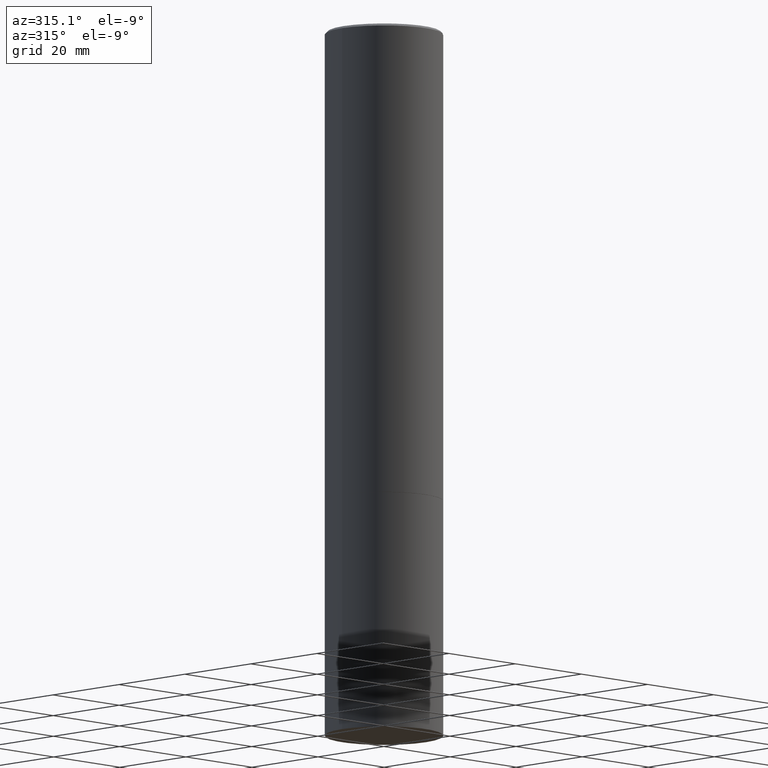
[diagram: clean part render]
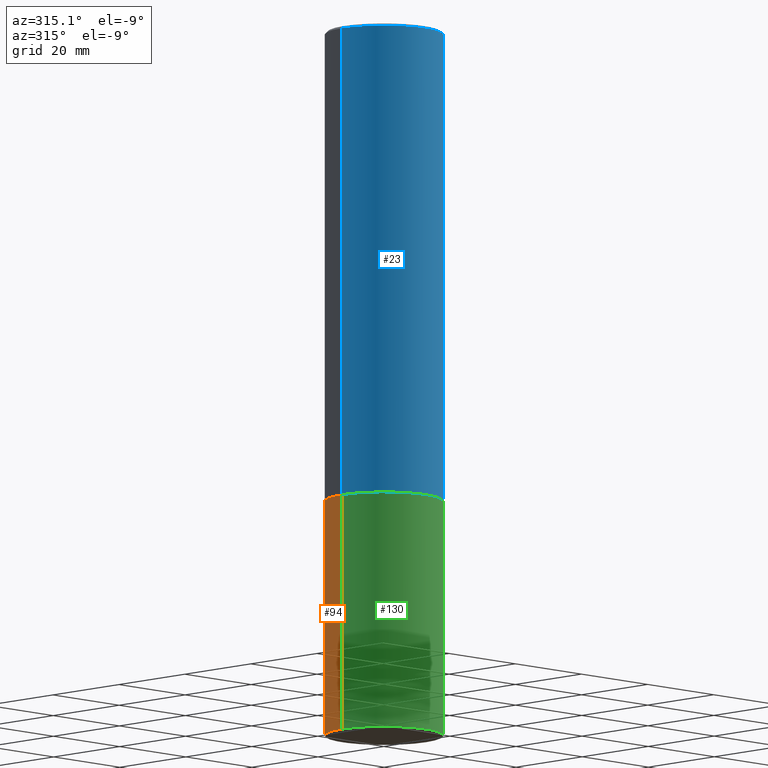
[diagram: same view with three faces highlighted in distinct colors, each labeled with its STEP entity id]
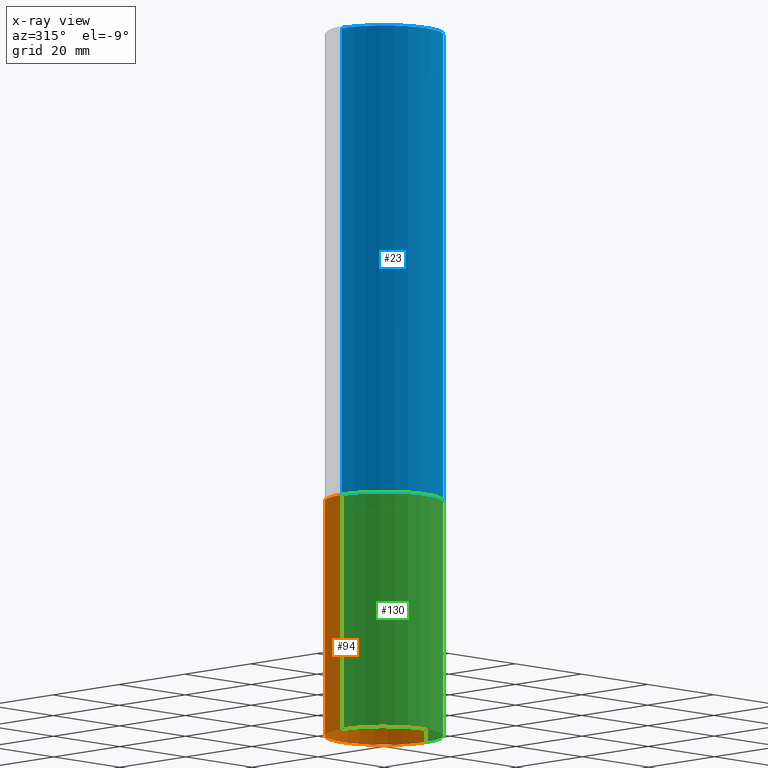
[diagram: x-ray of the same camera — body ghosted, the three highlighted faces saturated]
A machine part, auxiliary view with three faces highlighted in distinct colors.
The next image is the same camera in x-ray (body ghosted, the three faces saturated) — at least one of them is partly hidden behind the body in this view.
Their STEP definitions:

[orange] entity #94 — the highlighted cylindrical surface (partial cylindrical patch) has radius 12.7 mm, axis along (-0, 0, 1).
#7 = CIRCLE ( 'NONE', #313, 0.5000000000000000000 ) ;
#20 = CYLINDRICAL_SURFACE ( 'NONE', #307, 0.5000000000000000000 ) ;
#28 = CARTESIAN_POINT ( 'NONE',  ( 0.5000000000000000000, -2.444036937190200606E-14, -6.000000000000000888 ) ) ;
#41 = ORIENTED_EDGE ( 'NONE', *, *, #277, .F. ) ;
#44 = DIRECTION ( 'NONE',  ( -2.445468806185136877E-29, 3.491481338843145188E-15, 1.000000000000000000 ) ) ;
#58 = ORIENTED_EDGE ( 'NONE', *, *, #63, .T. ) ;
#63 = EDGE_CURVE ( 'NONE', #183, #288, #348, .T. ) ;
#68 = LINE ( 'NONE', #323, #148 ) ;
#78 = CARTESIAN_POINT ( 'NONE',  ( 9.781875224740549750E-29, -1.396592535537258549E-14, -4.000000000000000888 ) ) ;
#79 = CARTESIAN_POINT ( 'NONE',  ( 0.5000000000000000000, -1.745740669421572042E-14, -4.000000000000000888 ) ) ;
#84 = DIRECTION ( 'NONE',  ( 1.000000000000000000, -6.982962677686266711E-15, 0.000000000000000000 ) ) ;
#94 = ADVANCED_FACE ( 'NONE', ( #269 ), #20, .T. ) ;
#114 = CIRCLE ( 'NONE', #139, 0.5000000000000000000 ) ;
#119 = DIRECTION ( 'NONE',  ( 1.000000000000000000, -6.982962677686266711E-15, 4.876176775795935793E-29 ) ) ;
#136 = CARTESIAN_POINT ( 'NONE',  ( 1.467281283711081958E-28, -2.094888803305887271E-14, -6.000000000000000888 ) ) ;
#139 = AXIS2_PLACEMENT_3D ( 'NONE', #136, #334, #216 ) ;
#148 = VECTOR ( 'NONE', #44, 39.37007874015748143 ) ;
#152 = DIRECTION ( 'NONE',  ( -2.445468806185136597E-29, 3.491481338843145583E-15, 1.000000000000000000 ) ) ;
#156 = CARTESIAN_POINT ( 'NONE',  ( -0.5000000000000000000, -1.390469301541522896E-14, -6.000000000000000888 ) ) ;
#183 = VERTEX_POINT ( 'NONE', #156 ) ;
#202 = CARTESIAN_POINT ( 'NONE',  ( 0.000000000000000000, 0.000000000000000000, 0.000000000000000000 ) ) ;
#210 = ORIENTED_EDGE ( 'NONE', *, *, #345, .T. ) ;
#213 = ORIENTED_EDGE ( 'NONE', *, *, #309, .F. ) ;
#216 = DIRECTION ( 'NONE',  ( 1.000000000000000000, -6.982962677686262766E-15, 0.000000000000000000 ) ) ;
#239 = VERTEX_POINT ( 'NONE', #28 ) ;
#248 = VERTEX_POINT ( 'NONE', #79 ) ;
#258 = EDGE_LOOP ( 'NONE', ( #210, #58, #41, #213 ) ) ;
#259 = DIRECTION ( 'NONE',  ( -2.445468806185136597E-29, 3.491481338843145583E-15, 1.000000000000000000 ) ) ;
#261 = CARTESIAN_POINT ( 'NONE',  ( -0.5000000000000000000, -1.390469301541522896E-14, -4.000000000000000888 ) ) ;
#262 = DIRECTION ( 'NONE',  ( -2.445468806185136877E-29, 3.491481338843145188E-15, 1.000000000000000000 ) ) ;
#269 = FACE_OUTER_BOUND ( 'NONE', #258, .T. ) ;
#277 = EDGE_CURVE ( 'NONE', #248, #288, #7, .T. ) ;
#288 = VERTEX_POINT ( 'NONE', #261 ) ;
#289 = VECTOR ( 'NONE', #262, 39.37007874015748143 ) ;
#307 = AXIS2_PLACEMENT_3D ( 'NONE', #202, #152, #119 ) ;
#309 = EDGE_CURVE ( 'NONE', #239, #248, #68, .T. ) ;
#313 = AXIS2_PLACEMENT_3D ( 'NONE', #78, #259, #84 ) ;
#323 = CARTESIAN_POINT ( 'NONE',  ( 0.5000000000000000000, -3.491481338843133355E-15, 2.438088387897967896E-29 ) ) ;
#334 = DIRECTION ( 'NONE',  ( -2.445468806185136597E-29, 3.491481338843145583E-15, 1.000000000000000000 ) ) ;
#345 = EDGE_CURVE ( 'NONE', #239, #183, #114, .T. ) ;
#348 = LINE ( 'NONE', #351, #289 ) ;
#351 = CARTESIAN_POINT ( 'NONE',  ( -0.5000000000000000000, 3.552713678800500929E-15, -2.459467545127452891E-29 ) ) ;

[blue] entity #23 — the highlighted cylindrical surface (partial cylindrical patch) has radius 12.7 mm, axis along (-0, 0, 1).
#3 = AXIS2_PLACEMENT_3D ( 'NONE', #16, #9, #227 ) ;
#9 = DIRECTION ( 'NONE',  ( -2.445468806185136597E-29, 3.491481338843145583E-15, 1.000000000000000000 ) ) ;
#16 = CARTESIAN_POINT ( 'NONE',  ( 4.890937612370290675E-31, -6.982962677686316261E-17, -0.02000000000000007327 ) ) ;
#23 = ADVANCED_FACE ( 'NONE', ( #285 ), #249, .T. ) ;
#30 = VERTEX_POINT ( 'NONE', #287 ) ;
#32 = DIRECTION ( 'NONE',  ( -2.445468806185136877E-29, 3.491481338843145188E-15, 1.000000000000000000 ) ) ;
#37 = EDGE_CURVE ( 'NONE', #366, #30, #38, .T. ) ;
#38 = LINE ( 'NONE', #219, #147 ) ;
#55 = DIRECTION ( 'NONE',  ( -2.445468806185136597E-29, 3.491481338843145583E-15, 1.000000000000000000 ) ) ;
#60 = EDGE_CURVE ( 'NONE', #80, #30, #103, .T. ) ;
#62 = AXIS2_PLACEMENT_3D ( 'NONE', #160, #55, #295 ) ;
#80 = VERTEX_POINT ( 'NONE', #325 ) ;
#86 = EDGE_LOOP ( 'NONE', ( #255, #215, #143, #314 ) ) ;
#103 = CIRCLE ( 'NONE', #3, 0.4999999999999995004 ) ;
#126 = CARTESIAN_POINT ( 'NONE',  ( -0.4999999999999997224, 3.552713678800498957E-15, -2.459467545127451490E-29 ) ) ;
#143 = ORIENTED_EDGE ( 'NONE', *, *, #37, .T. ) ;
#147 = VECTOR ( 'NONE', #32, 39.37007874015748143 ) ;
#149 = LINE ( 'NONE', #126, #275 ) ;
#151 = VERTEX_POINT ( 'NONE', #357 ) ;
#160 = CARTESIAN_POINT ( 'NONE',  ( 0.000000000000000000, 0.000000000000000000, 0.000000000000000000 ) ) ;
#163 = CARTESIAN_POINT ( 'NONE',  ( 9.779429755934365268E-29, -1.396243387403374563E-14, -3.999000000000001886 ) ) ;
#165 = CARTESIAN_POINT ( 'NONE',  ( 0.5000000000000000000, -1.745391521287687899E-14, -3.999000000000001886 ) ) ;
#182 = DIRECTION ( 'NONE',  ( -2.445468806185136877E-29, 3.491481338843145188E-15, 1.000000000000000000 ) ) ;
#205 = EDGE_CURVE ( 'NONE', #151, #80, #149, .T. ) ;
#215 = ORIENTED_EDGE ( 'NONE', *, *, #256, .T. ) ;
#219 = CARTESIAN_POINT ( 'NONE',  ( 0.4999999999999997224, -3.491481338843131383E-15, 2.438088387897966495E-29 ) ) ;
#225 = DIRECTION ( 'NONE',  ( -2.445468806185136597E-29, 3.491481338843145583E-15, 1.000000000000000000 ) ) ;
#227 = DIRECTION ( 'NONE',  ( 1.000000000000000000, -6.982962677686267499E-15, 0.000000000000000000 ) ) ;
#237 = CIRCLE ( 'NONE', #300, 0.5000000000000000000 ) ;
#249 = CYLINDRICAL_SURFACE ( 'NONE', #62, 0.4999999999999997224 ) ;
#255 = ORIENTED_EDGE ( 'NONE', *, *, #205, .F. ) ;
#256 = EDGE_CURVE ( 'NONE', #151, #366, #237, .T. ) ;
#275 = VECTOR ( 'NONE', #182, 39.37007874015748143 ) ;
#285 = FACE_OUTER_BOUND ( 'NONE', #86, .T. ) ;
#286 = DIRECTION ( 'NONE',  ( 1.000000000000000000, -6.982962677686266711E-15, 0.000000000000000000 ) ) ;
#287 = CARTESIAN_POINT ( 'NONE',  ( 0.4999999999999995004, -3.500078625662625924E-15, -0.02000000000000007327 ) ) ;
#295 = DIRECTION ( 'NONE',  ( 1.000000000000000000, -6.982962677686266711E-15, 4.876176775795935793E-29 ) ) ;
#300 = AXIS2_PLACEMENT_3D ( 'NONE', #163, #225, #286 ) ;
#314 = ORIENTED_EDGE ( 'NONE', *, *, #60, .F. ) ;
#325 = CARTESIAN_POINT ( 'NONE',  ( -0.4999999999999995004, 3.421651712066266507E-15, -0.02000000000000007327 ) ) ;
#357 = CARTESIAN_POINT ( 'NONE',  ( -0.4999999999999999445, -3.463418071604800381E-15, -3.999000000000001886 ) ) ;
#366 = VERTEX_POINT ( 'NONE', #165 ) ;

[green] entity #130 — the highlighted cylindrical surface (partial cylindrical patch) has radius 12.7 mm, axis along (-0, 0, 1).
#27 = DIRECTION ( 'NONE',  ( 1.000000000000000000, -6.982962677686266711E-15, 0.000000000000000000 ) ) ;
#28 = CARTESIAN_POINT ( 'NONE',  ( 0.5000000000000000000, -2.444036937190200606E-14, -6.000000000000000888 ) ) ;
#44 = DIRECTION ( 'NONE',  ( -2.445468806185136877E-29, 3.491481338843145188E-15, 1.000000000000000000 ) ) ;
#46 = DIRECTION ( 'NONE',  ( -2.445468806185136597E-29, 3.491481338843145583E-15, 1.000000000000000000 ) ) ;
#51 = EDGE_LOOP ( 'NONE', ( #365, #335, #303, #96 ) ) ;
#63 = EDGE_CURVE ( 'NONE', #183, #288, #348, .T. ) ;
#68 = LINE ( 'NONE', #323, #148 ) ;
#79 = CARTESIAN_POINT ( 'NONE',  ( 0.5000000000000000000, -1.745740669421572042E-14, -4.000000000000000888 ) ) ;
#85 = AXIS2_PLACEMENT_3D ( 'NONE', #178, #46, #121 ) ;
#95 = DIRECTION ( 'NONE',  ( 1.000000000000000000, -6.982962677686262766E-15, 0.000000000000000000 ) ) ;
#96 = ORIENTED_EDGE ( 'NONE', *, *, #199, .F. ) ;
#97 = DIRECTION ( 'NONE',  ( -2.445468806185136597E-29, 3.491481338843145583E-15, 1.000000000000000000 ) ) ;
#100 = FACE_OUTER_BOUND ( 'NONE', #51, .T. ) ;
#121 = DIRECTION ( 'NONE',  ( 1.000000000000000000, -6.982962677686266711E-15, 4.876176775795935793E-29 ) ) ;
#130 = ADVANCED_FACE ( 'NONE', ( #100 ), #214, .T. ) ;
#133 = AXIS2_PLACEMENT_3D ( 'NONE', #331, #305, #27 ) ;
#148 = VECTOR ( 'NONE', #44, 39.37007874015748143 ) ;
#156 = CARTESIAN_POINT ( 'NONE',  ( -0.5000000000000000000, -1.390469301541522896E-14, -6.000000000000000888 ) ) ;
#177 = EDGE_CURVE ( 'NONE', #183, #239, #181, .T. ) ;
#178 = CARTESIAN_POINT ( 'NONE',  ( 0.000000000000000000, 0.000000000000000000, 0.000000000000000000 ) ) ;
#181 = CIRCLE ( 'NONE', #243, 0.5000000000000000000 ) ;
#183 = VERTEX_POINT ( 'NONE', #156 ) ;
#186 = CARTESIAN_POINT ( 'NONE',  ( 1.467281283711081958E-28, -2.094888803305887271E-14, -6.000000000000000888 ) ) ;
#199 = EDGE_CURVE ( 'NONE', #288, #248, #280, .T. ) ;
#214 = CYLINDRICAL_SURFACE ( 'NONE', #85, 0.5000000000000000000 ) ;
#239 = VERTEX_POINT ( 'NONE', #28 ) ;
#243 = AXIS2_PLACEMENT_3D ( 'NONE', #186, #97, #95 ) ;
#248 = VERTEX_POINT ( 'NONE', #79 ) ;
#261 = CARTESIAN_POINT ( 'NONE',  ( -0.5000000000000000000, -1.390469301541522896E-14, -4.000000000000000888 ) ) ;
#262 = DIRECTION ( 'NONE',  ( -2.445468806185136877E-29, 3.491481338843145188E-15, 1.000000000000000000 ) ) ;
#280 = CIRCLE ( 'NONE', #133, 0.5000000000000000000 ) ;
#288 = VERTEX_POINT ( 'NONE', #261 ) ;
#289 = VECTOR ( 'NONE', #262, 39.37007874015748143 ) ;
#303 = ORIENTED_EDGE ( 'NONE', *, *, #309, .T. ) ;
#305 = DIRECTION ( 'NONE',  ( -2.445468806185136597E-29, 3.491481338843145583E-15, 1.000000000000000000 ) ) ;
#309 = EDGE_CURVE ( 'NONE', #239, #248, #68, .T. ) ;
#323 = CARTESIAN_POINT ( 'NONE',  ( 0.5000000000000000000, -3.491481338843133355E-15, 2.438088387897967896E-29 ) ) ;
#331 = CARTESIAN_POINT ( 'NONE',  ( 9.781875224740549750E-29, -1.396592535537258549E-14, -4.000000000000000888 ) ) ;
#335 = ORIENTED_EDGE ( 'NONE', *, *, #177, .T. ) ;
#348 = LINE ( 'NONE', #351, #289 ) ;
#351 = CARTESIAN_POINT ( 'NONE',  ( -0.5000000000000000000, 3.552713678800500929E-15, -2.459467545127452891E-29 ) ) ;
#365 = ORIENTED_EDGE ( 'NONE', *, *, #63, .F. ) ;